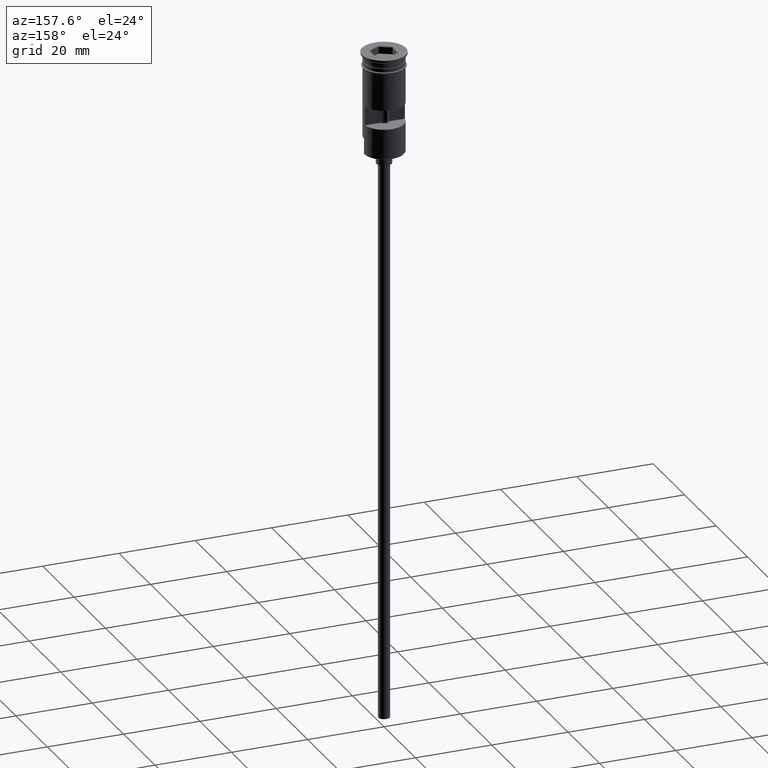
[diagram: clean part render]
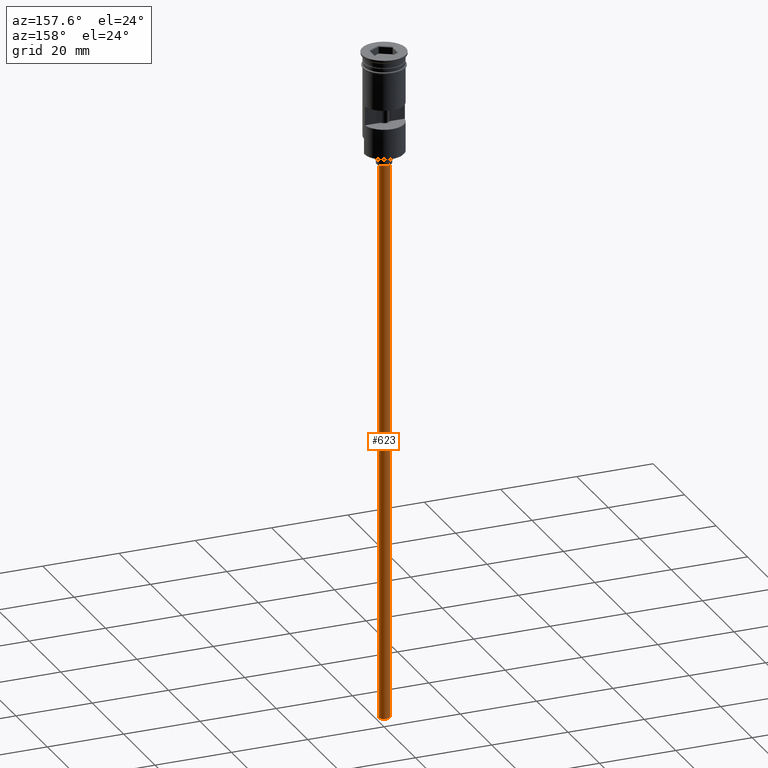
[diagram: same view with one face highlighted and labeled with its STEP entity id]
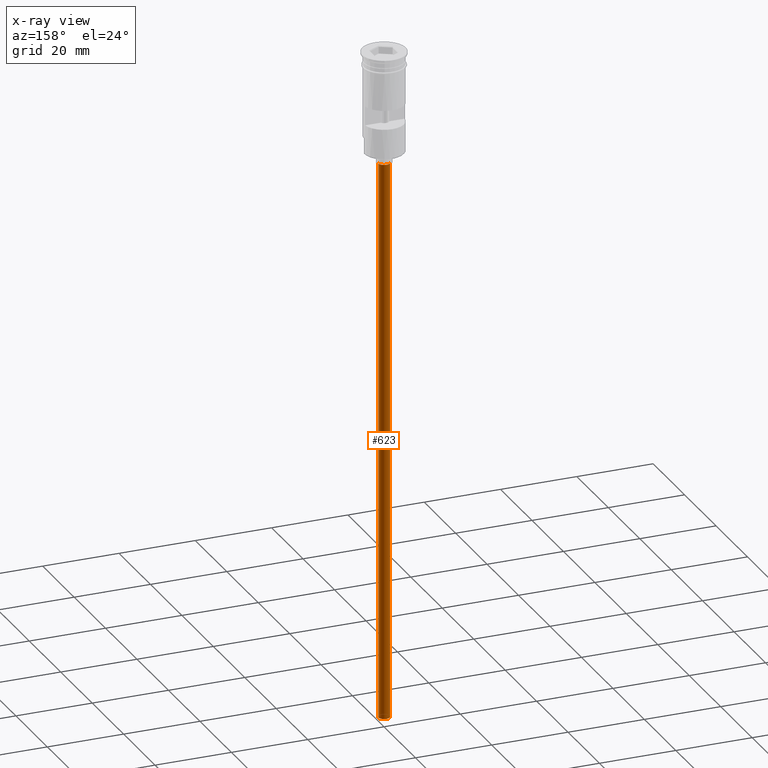
[diagram: x-ray of the same camera — body ghosted, the highlighted face saturated]
A machine part, auxiliary view. The second image highlights one B-rep face of the part: STEP entity #623.
The next image is the same camera in x-ray: the body ghosted, the highlighted face saturated — about 0% of this face is hidden behind the body in this view.
In plain terms, the highlighted cylindrical surface (edge-blend (fillet) strip) has radius 1.5 mm, axis along (-0, -0, 1).
Its self-contained STEP definition (entity closure, byte-faithful):
#16 = ORIENTED_EDGE ( 'NONE', *, *, #1037, .F. ) ;
#90 = VERTEX_POINT ( 'NONE', #827 ) ;
#172 = LINE ( 'NONE', #812, #1414 ) ;
#220 = VERTEX_POINT ( 'NONE', #1595 ) ;
#280 = FACE_OUTER_BOUND ( 'NONE', #1310, .T. ) ;
#365 = EDGE_CURVE ( 'NONE', #90, #220, #172, .T. ) ;
#382 = VECTOR ( 'NONE', #584, 1000.000000000000000 ) ;
#393 = CARTESIAN_POINT ( 'NONE',  ( 1.500000000000000222, 0.000000000000000000, -176.5000000000000000 ) ) ;
#499 = DIRECTION ( 'NONE',  ( -1.000000000000000000, 0.000000000000000000, 0.000000000000000000 ) ) ;
#503 = DIRECTION ( 'NONE',  ( -0.000000000000000000, -0.000000000000000000, 1.000000000000000000 ) ) ;
#509 = VERTEX_POINT ( 'NONE', #393 ) ;
#515 = CIRCLE ( 'NONE', #1422, 1.500000000000000222 ) ;
#544 = CARTESIAN_POINT ( 'NONE',  ( 0.000000000000000000, 0.000000000000000000, -176.5000000000000000 ) ) ;
#584 = DIRECTION ( 'NONE',  ( -0.000000000000000000, -0.000000000000000000, 1.000000000000000000 ) ) ;
#603 = CARTESIAN_POINT ( 'NONE',  ( 0.000000000000000000, 0.000000000000000000, -29.50000000000000000 ) ) ;
#621 = CIRCLE ( 'NONE', #848, 1.500000000000000222 ) ;
#623 = ADVANCED_FACE ( 'NONE', ( #280 ), #1132, .T. ) ;
#780 = DIRECTION ( 'NONE',  ( 1.000000000000000000, 0.000000000000000000, 0.000000000000000000 ) ) ;
#793 = AXIS2_PLACEMENT_3D ( 'NONE', #1140, #503, #780 ) ;
#809 = CARTESIAN_POINT ( 'NONE',  ( 1.500000000000000222, 0.000000000000000000, -29.50000000000000000 ) ) ;
#812 = CARTESIAN_POINT ( 'NONE',  ( -1.500000000000000222, 1.836970198721030181E-16, -176.5000000000000000 ) ) ;
#827 = CARTESIAN_POINT ( 'NONE',  ( -1.500000000000000222, 1.836970198721030181E-16, -176.5000000000000000 ) ) ;
#848 = AXIS2_PLACEMENT_3D ( 'NONE', #544, #1041, #1509 ) ;
#869 = ORIENTED_EDGE ( 'NONE', *, *, #1284, .F. ) ;
#912 = ORIENTED_EDGE ( 'NONE', *, *, #1183, .T. ) ;
#945 = CARTESIAN_POINT ( 'NONE',  ( 1.500000000000000222, 0.000000000000000000, -176.5000000000000000 ) ) ;
#1037 = EDGE_CURVE ( 'NONE', #90, #509, #621, .T. ) ;
#1041 = DIRECTION ( 'NONE',  ( 0.000000000000000000, 0.000000000000000000, -1.000000000000000000 ) ) ;
#1132 = CYLINDRICAL_SURFACE ( 'NONE', #793, 1.500000000000000222 ) ;
#1140 = CARTESIAN_POINT ( 'NONE',  ( 0.000000000000000000, 0.000000000000000000, -176.5000000000000000 ) ) ;
#1142 = ORIENTED_EDGE ( 'NONE', *, *, #365, .T. ) ;
#1183 = EDGE_CURVE ( 'NONE', #220, #1265, #515, .T. ) ;
#1265 = VERTEX_POINT ( 'NONE', #809 ) ;
#1284 = EDGE_CURVE ( 'NONE', #509, #1265, #1413, .T. ) ;
#1295 = DIRECTION ( 'NONE',  ( -0.000000000000000000, -0.000000000000000000, 1.000000000000000000 ) ) ;
#1310 = EDGE_LOOP ( 'NONE', ( #16, #1142, #912, #869 ) ) ;
#1413 = LINE ( 'NONE', #945, #382 ) ;
#1414 = VECTOR ( 'NONE', #1295, 1000.000000000000000 ) ;
#1422 = AXIS2_PLACEMENT_3D ( 'NONE', #603, #1467, #499 ) ;
#1467 = DIRECTION ( 'NONE',  ( 0.000000000000000000, 0.000000000000000000, -1.000000000000000000 ) ) ;
#1509 = DIRECTION ( 'NONE',  ( -1.000000000000000000, 0.000000000000000000, 0.000000000000000000 ) ) ;
#1595 = CARTESIAN_POINT ( 'NONE',  ( -1.500000000000000222, 1.836970198721030181E-16, -29.50000000000000000 ) ) ;